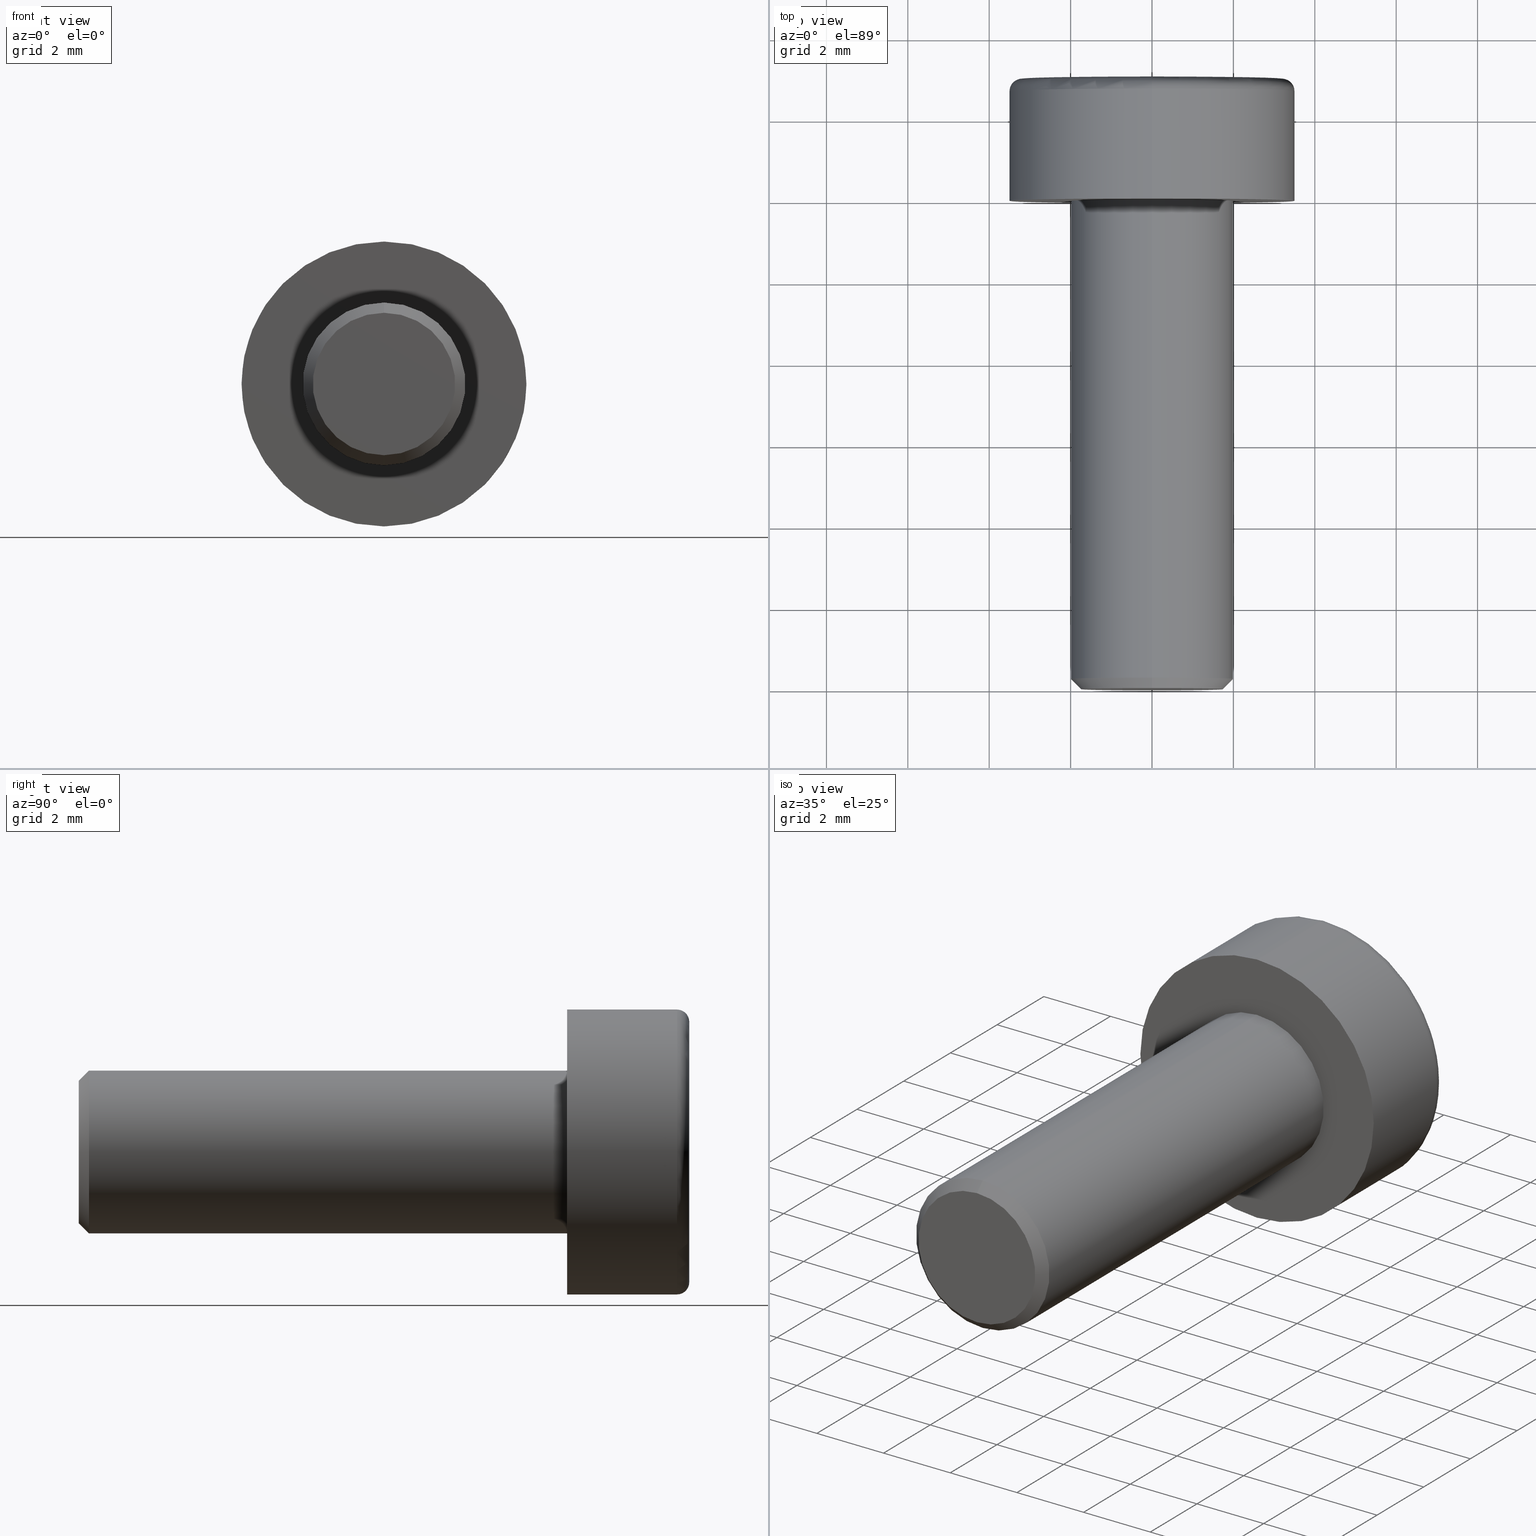
[diagram: canonical four-view strip — front | top / right | iso, engineering-drawing reading convention]
A machine part, canonical four-view strip (front | top / right | iso — engineering-drawing reading convention). The complete STEP part file that produces these views, byte-faithful:
ISO-10303-21;
HEADER;
FILE_DESCRIPTION (( 'STEP AP203' ),
    '1' );
FILE_NAME ('084.301.008.STEP',
    '2015-04-17T10:03:38',
    ( '' ),
    ( '' ),
    'SwSTEP 2.0',
    'SolidWorks 2012',
    '' );
FILE_SCHEMA (( 'CONFIG_CONTROL_DESIGN' ));
ENDSEC;

DATA;
#1 = CALENDAR_DATE ( 2015, 17, 4 ) ;
#2 = COORDINATED_UNIVERSAL_TIME_OFFSET ( 1, 0, .AHEAD. ) ;
#3 = APPROVAL_DATE_TIME ( #5, #497 ) ;
#4 = PERSON_AND_ORGANIZATION ( #311, #318 ) ;
#5 = DATE_AND_TIME ( #1, #7 ) ;
#6 = APPROVAL_PERSON_ORGANIZATION ( #4, #497, #269 ) ;
#7 = LOCAL_TIME ( 12, 3, 38.00000000000000000, #2 ) ;
#8 = ADVANCED_BREP_SHAPE_REPRESENTATION ( '084.301.008', ( #10, #482 ), #481 ) ;
#9 = UNCERTAINTY_MEASURE_WITH_UNIT (LENGTH_MEASURE( 1.000000000000000100E-005 ), #137, 'distance_accuracy_value', 'NONE');
#10 = MANIFOLD_SOLID_BREP ( 'Smusso1', #363 ) ;
#11 = DIRECTION ( 'NONE',  ( -0.0000000000000000000, -1.000000000000000000, -0.0000000000000000000 ) ) ;
#12 = CARTESIAN_POINT ( 'NONE',  ( 0.8660254037844383700, 1.000000000000000000, -1.499999999999999100 ) ) ;
#13 = DIRECTION ( 'NONE',  ( 0.0000000000000000000, 0.0000000000000000000, 1.000000000000000000 ) ) ;
#14 = APPROVAL_ROLE ( '' ) ;
#15 = APPROVAL_STATUS ( 'not_yet_approved' ) ;
#16 = CARTESIAN_POINT ( 'NONE',  ( -1.732050807568877900, 3.000000000000000000, -1.397130228418429200E-015 ) ) ;
#17 = CARTESIAN_POINT ( 'NONE',  ( 0.0000000000000000000, -12.00000000000000000, 0.0000000000000000000 ) ) ;
#18 = PLANE ( 'NONE',  #452 ) ;
#19 = DIRECTION ( 'NONE',  ( -0.5000000000000001100, 0.0000000000000000000, -0.8660254037844386000 ) ) ;
#20 = DATE_TIME_ROLE ( 'creation_date' ) ;
#21 = DIRECTION ( 'NONE',  ( 0.0000000000000000000, 0.0000000000000000000, 1.000000000000000000 ) ) ;
#22 = DIRECTION ( 'NONE',  ( 0.0000000000000000000, 0.0000000000000000000, -1.000000000000000000 ) ) ;
#23 = DIRECTION ( 'NONE',  ( -1.000000000000000000, 0.0000000000000000000, 2.503857664561930400E-016 ) ) ;
#24 = DIRECTION ( 'NONE',  ( 0.0000000000000000000, 1.000000000000000000, 0.0000000000000000000 ) ) ;
#25 = PERSON_AND_ORGANIZATION_ROLE ( 'creator' ) ;
#26 = CARTESIAN_POINT ( 'NONE',  ( 2.143131898507872000E-016, -12.00000000000000000, -1.750000000000003300 ) ) ;
#27 = APPROVAL_ROLE ( '' ) ;
#28 = CARTESIAN_POINT ( 'NONE',  ( 0.0000000000000000000, 3.000000000000000000, -3.500000000000000000 ) ) ;
#29 = APPROVAL_STATUS ( 'not_yet_approved' ) ;
#30 = APPLICATION_PROTOCOL_DEFINITION ( 'international standard', 'config_control_design', 1994, #34 ) ;
#31 = DIRECTION ( 'NONE',  ( 0.0000000000000000000, 0.0000000000000000000, -1.000000000000000000 ) ) ;
#32 = DIRECTION ( 'NONE',  ( 0.0000000000000000000, -1.000000000000000000, 0.0000000000000000000 ) ) ;
#33 = CARTESIAN_POINT ( 'NONE',  ( 0.8660254037844383700, 3.000000000000000000, -1.499999999999999100 ) ) ;
#34 = APPLICATION_CONTEXT ( 'configuration controlled 3d designs of mechanical parts and assemblies' ) ;
#35 = CARTESIAN_POINT ( 'NONE',  ( 0.0000000000000000000, 2.700000000000000200, 0.0000000000000000000 ) ) ;
#36 = PERSON_AND_ORGANIZATION_ROLE ( 'design_owner' ) ;
#37 = CARTESIAN_POINT ( 'NONE',  ( 0.8660254037844383700, 1.000000000000000000, -1.499999999999999100 ) ) ;
#38 = MECHANICAL_CONTEXT ( 'NONE', #46, 'mechanical' ) ;
#39 = DIRECTION ( 'NONE',  ( 0.0000000000000000000, 0.0000000000000000000, 1.000000000000000000 ) ) ;
#40 = CARTESIAN_POINT ( 'NONE',  ( 0.0000000000000000000, -11.75000000000000200, 2.000000000000000000 ) ) ;
#41 = CARTESIAN_POINT ( 'NONE',  ( 0.0000000000000000000, -12.00000000000000000, 0.0000000000000000000 ) ) ;
#42 = DIRECTION ( 'NONE',  ( 0.5000000000000001100, 0.0000000000000000000, -0.8660254037844386000 ) ) ;
#43 = DIRECTION ( 'NONE',  ( 1.000000000000000000, 0.0000000000000000000, 0.0000000000000000000 ) ) ;
#44 = DIRECTION ( 'NONE',  ( 0.0000000000000000000, 0.0000000000000000000, 1.000000000000000000 ) ) ;
#45 = CARTESIAN_POINT ( 'NONE',  ( 0.0000000000000000000, 0.0000000000000000000, 0.0000000000000000000 ) ) ;
#46 = APPLICATION_CONTEXT ( 'configuration controlled 3d designs of mechanical parts and assemblies' ) ;
#47 = CARTESIAN_POINT ( 'NONE',  ( 0.0000000000000000000, -12.00000000000000000, 0.0000000000000000000 ) ) ;
#48 = APPLICATION_PROTOCOL_DEFINITION ( 'international standard', 'config_control_design', 1994, #46 ) ;
#49 = DIRECTION ( 'NONE',  ( 0.0000000000000000000, 0.0000000000000000000, 1.000000000000000000 ) ) ;
#50 = DIRECTION ( 'NONE',  ( -0.0000000000000000000, -1.000000000000000000, -0.0000000000000000000 ) ) ;
#51 = CARTESIAN_POINT ( 'NONE',  ( 2.449293598294706400E-016, 0.0000000000000000000, -2.000000000000000000 ) ) ;
#52 = CARTESIAN_POINT ( 'NONE',  ( 4.102566777143633300E-016, 3.000000000000000000, -3.200000000000000200 ) ) ;
#53 =( NAMED_UNIT ( * ) SI_UNIT ( $, .STERADIAN. ) SOLID_ANGLE_UNIT ( ) );
#54 =( NAMED_UNIT ( * ) PLANE_ANGLE_UNIT ( ) SI_UNIT ( $, .RADIAN. ) );
#55 = DIRECTION ( 'NONE',  ( -0.5000000000000001100, 0.0000000000000000000, 0.8660254037844386000 ) ) ;
#56 = CARTESIAN_POINT ( 'NONE',  ( 0.8660254037844383700, 1.000000000000000000, -1.499999999999999100 ) ) ;
#57 = DIRECTION ( 'NONE',  ( 0.5000000000000002200, 0.0000000000000000000, 0.8660254037844386000 ) ) ;
#58 = CARTESIAN_POINT ( 'NONE',  ( -1.732050807568877900, 1.000000000000000000, -1.397130228418429200E-015 ) ) ;
#59 = PLANE ( 'NONE',  #467 ) ;
#60 = DIRECTION ( 'NONE',  ( -0.0000000000000000000, -1.000000000000000000, -0.0000000000000000000 ) ) ;
#61 = DIRECTION ( 'NONE',  ( 0.0000000000000000000, 0.0000000000000000000, -1.000000000000000000 ) ) ;
#62 = DIRECTION ( 'NONE',  ( 0.0000000000000000000, -1.000000000000000000, 0.0000000000000000000 ) ) ;
#63 = CARTESIAN_POINT ( 'NONE',  ( 0.0000000000000000000, 2.700000000000000200, 0.0000000000000000000 ) ) ;
#64 = CARTESIAN_POINT ( 'NONE',  ( 0.0000000000000000000, -12.00000000000000000, 0.0000000000000000000 ) ) ;
#65 = PLANE ( 'NONE',  #450 ) ;
#66 = DIRECTION ( 'NONE',  ( 0.0000000000000000000, -1.000000000000000000, 0.0000000000000000000 ) ) ;
#67 = DIRECTION ( 'NONE',  ( -0.0000000000000000000, 1.000000000000000000, -0.0000000000000000000 ) ) ;
#68 = CARTESIAN_POINT ( 'NONE',  ( 0.0000000000000000000, 3.000000000000000000, 3.200000000000000200 ) ) ;
#69 = CARTESIAN_POINT ( 'NONE',  ( 1.732050807568877200, 3.000000000000000000, 6.989779385099198900E-016 ) ) ;
#70 = CARTESIAN_POINT ( 'NONE',  ( 0.0000000000000000000, 0.0000000000000000000, -3.500000000000000000 ) ) ;
#71 = CARTESIAN_POINT ( 'NONE',  ( 0.0000000000000000000, -12.00000000000000000, 0.0000000000000000000 ) ) ;
#72 = CARTESIAN_POINT ( 'NONE',  ( 0.8660254037844382600, 1.000000000000000000, 1.500000000000000700 ) ) ;
#73 = DIRECTION ( 'NONE',  ( 0.8660254037844386000, 0.0000000000000000000, 0.5000000000000001100 ) ) ;
#74 = PERSON_AND_ORGANIZATION_ROLE ( 'creator' ) ;
#75 = CARTESIAN_POINT ( 'NONE',  ( -0.8660254037844404800, 3.000000000000000000, -1.499999999999998700 ) ) ;
#76 = DIRECTION ( 'NONE',  ( 0.0000000000000000000, 0.0000000000000000000, 1.000000000000000000 ) ) ;
#77 = DIRECTION ( 'NONE',  ( -0.8660254037844386000, 0.0000000000000000000, 0.5000000000000002200 ) ) ;
#78 = DIRECTION ( 'NONE',  ( 8.659560562354904500E-017, 0.7071067811865500200, -0.7071067811865451300 ) ) ;
#79 = DIRECTION ( 'NONE',  ( -0.0000000000000000000, 1.000000000000000000, -0.0000000000000000000 ) ) ;
#80 = DIRECTION ( 'NONE',  ( 0.0000000000000000000, 0.0000000000000000000, 1.000000000000000000 ) ) ;
#81 = DIRECTION ( 'NONE',  ( -0.0000000000000000000, 1.000000000000000000, -0.0000000000000000000 ) ) ;
#82 = PLANE ( 'NONE',  #462 ) ;
#83 = PLANE ( 'NONE',  #459 ) ;
#84 = DIRECTION ( 'NONE',  ( 0.0000000000000000000, 1.000000000000000000, 0.0000000000000000000 ) ) ;
#85 = CARTESIAN_POINT ( 'NONE',  ( -0.8660254037844404800, 1.000000000000000000, -1.499999999999998700 ) ) ;
#86 = DIRECTION ( 'NONE',  ( 0.0000000000000000000, 0.0000000000000000000, -1.000000000000000000 ) ) ;
#87 = DIRECTION ( 'NONE',  ( -0.0000000000000000000, 1.000000000000000000, -0.0000000000000000000 ) ) ;
#88 = CARTESIAN_POINT ( 'NONE',  ( 0.0000000000000000000, -12.00000000000000000, 0.0000000000000000000 ) ) ;
#89 = DIRECTION ( 'NONE',  ( 0.0000000000000000000, 0.0000000000000000000, 1.000000000000000000 ) ) ;
#90 = DIRECTION ( 'NONE',  ( 0.0000000000000000000, 1.000000000000000000, 0.0000000000000000000 ) ) ;
#91 = CARTESIAN_POINT ( 'NONE',  ( 0.0000000000000000000, -11.75000000000000200, 0.0000000000000000000 ) ) ;
#92 = DIRECTION ( 'NONE',  ( -0.0000000000000000000, -1.000000000000000000, -0.0000000000000000000 ) ) ;
#93 = CARTESIAN_POINT ( 'NONE',  ( -1.732050807568877900, 1.000000000000000000, -1.397130228418429200E-015 ) ) ;
#94 = CARTESIAN_POINT ( 'NONE',  ( 1.732050807568877200, 1.000000000000000000, 6.989779385099198900E-016 ) ) ;
#95 = CARTESIAN_POINT ( 'NONE',  ( 0.0000000000000000000, 0.0000000000000000000, 0.0000000000000000000 ) ) ;
#96 = CARTESIAN_POINT ( 'NONE',  ( 0.8660254037844382600, 1.000000000000000000, 1.500000000000000700 ) ) ;
#97 = CARTESIAN_POINT ( 'NONE',  ( 2.449293598294706400E-016, -11.75000000000000200, -2.000000000000000000 ) ) ;
#98 = DIRECTION ( 'NONE',  ( 0.0000000000000000000, 1.000000000000000000, -0.0000000000000000000 ) ) ;
#99 = CARTESIAN_POINT ( 'NONE',  ( 0.0000000000000000000, 2.700000000000000200, -3.500000000000000000 ) ) ;
#100 = PLANE ( 'NONE',  #458 ) ;
#101 = DIRECTION ( 'NONE',  ( 1.000000000000000000, 0.0000000000000000000, 0.0000000000000000000 ) ) ;
#102 = CARTESIAN_POINT ( 'NONE',  ( -0.8660254037844404800, 1.000000000000000000, -1.499999999999998700 ) ) ;
#103 = CARTESIAN_POINT ( 'NONE',  ( 1.732050807568877200, 1.000000000000000000, 6.989779385099198900E-016 ) ) ;
#104 = CARTESIAN_POINT ( 'NONE',  ( -1.732050807568877900, 1.000000000000000000, -1.397130228418429200E-015 ) ) ;
#105 = DIRECTION ( 'NONE',  ( 0.0000000000000000000, 1.000000000000000000, 0.0000000000000000000 ) ) ;
#106 = CARTESIAN_POINT ( 'NONE',  ( 2.296212748401289000E-016, -12.00000000000000000, -1.750000000000003300 ) ) ;
#107 = DIRECTION ( 'NONE',  ( 0.5000000000000001100, 0.0000000000000000000, 0.8660254037844384900 ) ) ;
#108 = CARTESIAN_POINT ( 'NONE',  ( 0.0000000000000000000, -12.00000000000000000, 1.750000000000003300 ) ) ;
#109 = PLANE ( 'NONE',  #455 ) ;
#110 = CARTESIAN_POINT ( 'NONE',  ( -1.732050807568877900, 1.000000000000000000, -1.397130228418429200E-015 ) ) ;
#111 = DIRECTION ( 'NONE',  ( -0.0000000000000000000, 1.000000000000000000, -0.0000000000000000000 ) ) ;
#112 = CARTESIAN_POINT ( 'NONE',  ( 0.0000000000000000000, 0.0000000000000000000, 0.0000000000000000000 ) ) ;
#113 = CARTESIAN_POINT ( 'NONE',  ( 0.0000000000000000000, 3.000000000000000000, 0.0000000000000000000 ) ) ;
#114 = CARTESIAN_POINT ( 'NONE',  ( -0.8660254037844377100, 1.000000000000000000, 1.500000000000000700 ) ) ;
#115 = DIRECTION ( 'NONE',  ( 0.0000000000000000000, 0.0000000000000000000, 1.000000000000000000 ) ) ;
#116 = DIRECTION ( 'NONE',  ( 1.000000000000000000, 0.0000000000000000000, 0.0000000000000000000 ) ) ;
#117 = PLANE ( 'NONE',  #456 ) ;
#118 = DIRECTION ( 'NONE',  ( 1.000000000000000000, 0.0000000000000000000, 0.0000000000000000000 ) ) ;
#119 = CARTESIAN_POINT ( 'NONE',  ( -0.8660254037844377100, 1.000000000000000000, 1.500000000000000700 ) ) ;
#120 = DIRECTION ( 'NONE',  ( -0.0000000000000000000, 1.000000000000000000, -0.0000000000000000000 ) ) ;
#121 = CARTESIAN_POINT ( 'NONE',  ( 0.8660254037844382600, 1.000000000000000000, 1.500000000000000700 ) ) ;
#122 = DIRECTION ( 'NONE',  ( 0.5000000000000001100, 0.0000000000000000000, -0.8660254037844386000 ) ) ;
#123 = CARTESIAN_POINT ( 'NONE',  ( 0.8660254037844382600, 1.000000000000000000, 1.500000000000000700 ) ) ;
#124 = DIRECTION ( 'NONE',  ( 0.0000000000000000000, 0.7071067811865500200, 0.7071067811865451300 ) ) ;
#125 = DIRECTION ( 'NONE',  ( -2.503857664561930400E-016, 0.0000000000000000000, -1.000000000000000000 ) ) ;
#126 = DIRECTION ( 'NONE',  ( -0.5000000000000001100, 0.0000000000000000000, -0.8660254037844386000 ) ) ;
#127 = CARTESIAN_POINT ( 'NONE',  ( 1.732050807568877200, 1.000000000000000000, 6.989779385099198900E-016 ) ) ;
#128 = DIRECTION ( 'NONE',  ( -0.0000000000000000000, 1.000000000000000000, -0.0000000000000000000 ) ) ;
#129 = DIRECTION ( 'NONE',  ( 0.5000000000000001100, 0.0000000000000000000, -0.8660254037844386000 ) ) ;
#130 = CARTESIAN_POINT ( 'NONE',  ( 0.8660254037844382600, 3.000000000000000000, 1.500000000000000700 ) ) ;
#131 = DIRECTION ( 'NONE',  ( 0.0000000000000000000, 0.0000000000000000000, 1.000000000000000000 ) ) ;
#132 = CARTESIAN_POINT ( 'NONE',  ( -1.732050807568877900, 1.000000000000000000, -1.325064512341561300E-015 ) ) ;
#133 = DIRECTION ( 'NONE',  ( 0.0000000000000000000, 1.000000000000000000, 0.0000000000000000000 ) ) ;
#134 = CARTESIAN_POINT ( 'NONE',  ( 0.0000000000000000000, 0.0000000000000000000, 0.0000000000000000000 ) ) ;
#135 = CARTESIAN_POINT ( 'NONE',  ( 2.449293598294706400E-016, -12.00000000000000000, -2.000000000000000000 ) ) ;
#136 = DIRECTION ( 'NONE',  ( 0.0000000000000000000, -0.0000000000000000000, 1.000000000000000000 ) ) ;
#137 =( LENGTH_UNIT ( ) NAMED_UNIT ( * ) SI_UNIT ( .MILLI., .METRE. ) );
#138 = DIRECTION ( 'NONE',  ( -1.000000000000000000, 0.0000000000000000000, 2.503857664561930400E-016 ) ) ;
#139 = DIRECTION ( 'NONE',  ( 1.224646799147353200E-016, 0.0000000000000000000, -1.000000000000000000 ) ) ;
#140 = DIRECTION ( 'NONE',  ( 0.0000000000000000000, 0.0000000000000000000, 1.000000000000000000 ) ) ;
#141 = DIRECTION ( 'NONE',  ( -1.000000000000000000, 0.0000000000000000000, 0.0000000000000000000 ) ) ;
#142 = CARTESIAN_POINT ( 'NONE',  ( 4.286263797015736600E-016, 0.0000000000000000000, 3.500000000000000000 ) ) ;
#143 = CARTESIAN_POINT ( 'NONE',  ( 0.0000000000000000000, 2.700000000000000200, 3.200000000000000200 ) ) ;
#144 = CARTESIAN_POINT ( 'NONE',  ( 0.8660254037844382600, 3.000000000000000000, 1.500000000000000700 ) ) ;
#145 = DIRECTION ( 'NONE',  ( 1.000000000000000000, -0.0000000000000000000, 1.224646799147353200E-016 ) ) ;
#146 = CARTESIAN_POINT ( 'NONE',  ( -0.8660254037844377100, 3.000000000000000000, 1.500000000000000700 ) ) ;
#147 = DIRECTION ( 'NONE',  ( 0.8660254037844386000, 0.0000000000000000000, -0.5000000000000001100 ) ) ;
#148 = DIRECTION ( 'NONE',  ( -0.5000000000000001100, 0.0000000000000000000, -0.8660254037844386000 ) ) ;
#149 = CARTESIAN_POINT ( 'NONE',  ( 0.8660254037844383700, 3.000000000000000000, -1.499999999999999100 ) ) ;
#150 = DIRECTION ( 'NONE',  ( 0.0000000000000000000, -0.0000000000000000000, 1.000000000000000000 ) ) ;
#151 = DIRECTION ( 'NONE',  ( 0.0000000000000000000, 1.000000000000000000, 0.0000000000000000000 ) ) ;
#152 = CARTESIAN_POINT ( 'NONE',  ( 0.8660254037844383700, 1.000000000000000000, -1.499999999999999100 ) ) ;
#153 = CARTESIAN_POINT ( 'NONE',  ( -0.8660254037844377100, 1.000000000000000000, 1.500000000000000700 ) ) ;
#154 = DIRECTION ( 'NONE',  ( -0.5000000000000001100, 0.0000000000000000000, 0.8660254037844386000 ) ) ;
#155 = DIRECTION ( 'NONE',  ( 0.0000000000000000000, 0.0000000000000000000, 1.000000000000000000 ) ) ;
#156 = DIRECTION ( 'NONE',  ( -0.0000000000000000000, -1.000000000000000000, -0.0000000000000000000 ) ) ;
#157 = CARTESIAN_POINT ( 'NONE',  ( 0.0000000000000000000, 2.700000000000000200, 0.0000000000000000000 ) ) ;
#158 = DIRECTION ( 'NONE',  ( 0.0000000000000000000, 1.000000000000000000, 0.0000000000000000000 ) ) ;
#159 = CARTESIAN_POINT ( 'NONE',  ( 0.0000000000000000000, 0.0000000000000000000, 2.000000000000000000 ) ) ;
#160 = DIRECTION ( 'NONE',  ( -1.000000000000000000, 0.0000000000000000000, 2.503857664561930400E-016 ) ) ;
#161 = DIRECTION ( 'NONE',  ( -0.0000000000000000000, -1.000000000000000000, -0.0000000000000000000 ) ) ;
#162 = DIRECTION ( 'NONE',  ( 0.5000000000000001100, 0.0000000000000000000, 0.8660254037844384900 ) ) ;
#163 = CARTESIAN_POINT ( 'NONE',  ( -1.732050807568877900, 3.000000000000000000, -1.517883041479706200E-015 ) ) ;
#164 = DIRECTION ( 'NONE',  ( 0.0000000000000000000, 0.0000000000000000000, 1.000000000000000000 ) ) ;
#165 = DIRECTION ( 'NONE',  ( -0.0000000000000000000, -1.000000000000000000, -0.0000000000000000000 ) ) ;
#166 = CARTESIAN_POINT ( 'NONE',  ( 0.0000000000000000000, 0.0000000000000000000, 0.0000000000000000000 ) ) ;
#167 = CARTESIAN_POINT ( 'NONE',  ( -0.8660254037844404800, 3.000000000000000000, -1.499999999999998700 ) ) ;
#168 = CARTESIAN_POINT ( 'NONE',  ( 3.918869757271530500E-016, 2.700000000000000200, -3.200000000000000200 ) ) ;
#169 = CARTESIAN_POINT ( 'NONE',  ( 0.0000000000000000000, -12.00000000000000000, 2.000000000000000000 ) ) ;
#170 = CARTESIAN_POINT ( 'NONE',  ( 4.286263797015736600E-016, 2.700000000000000200, 3.500000000000000000 ) ) ;
#171 = DIRECTION ( 'NONE',  ( 0.0000000000000000000, 0.0000000000000000000, -1.000000000000000000 ) ) ;
#172 = DIRECTION ( 'NONE',  ( -0.0000000000000000000, 1.000000000000000000, -0.0000000000000000000 ) ) ;
#173 = DIRECTION ( 'NONE',  ( -0.0000000000000000000, 1.000000000000000000, -0.0000000000000000000 ) ) ;
#174 = CARTESIAN_POINT ( 'NONE',  ( -0.8660254037844377100, 3.000000000000000000, 1.500000000000000700 ) ) ;
#175 = CARTESIAN_POINT ( 'NONE',  ( 0.0000000000000000000, 3.000000000000000000, 0.0000000000000000000 ) ) ;
#176 = DIRECTION ( 'NONE',  ( 0.0000000000000000000, -0.0000000000000000000, -1.000000000000000000 ) ) ;
#177 = PLANE ( 'NONE',  #461 ) ;
#178 = DIRECTION ( 'NONE',  ( 0.0000000000000000000, 0.0000000000000000000, 1.000000000000000000 ) ) ;
#179 = CARTESIAN_POINT ( 'NONE',  ( 0.0000000000000000000, -12.00000000000000000, 1.750000000000003300 ) ) ;
#180 = DIRECTION ( 'NONE',  ( -0.5000000000000001100, 0.0000000000000000000, 0.8660254037844386000 ) ) ;
#181 = DIRECTION ( 'NONE',  ( -0.0000000000000000000, 0.0000000000000000000, 1.000000000000000000 ) ) ;
#182 = DIRECTION ( 'NONE',  ( 0.0000000000000000000, 1.000000000000000000, 0.0000000000000000000 ) ) ;
#183 = DIRECTION ( 'NONE',  ( 0.0000000000000000000, 0.0000000000000000000, -1.000000000000000000 ) ) ;
#184 = DIRECTION ( 'NONE',  ( 0.0000000000000000000, 1.000000000000000000, 0.0000000000000000000 ) ) ;
#185 = PLANE ( 'NONE',  #460 ) ;
#186 = CARTESIAN_POINT ( 'NONE',  ( 0.0000000000000000000, 3.000000000000000000, 0.0000000000000000000 ) ) ;
#187 = CARTESIAN_POINT ( 'NONE',  ( 0.0000000000000000000, -11.75000000000000200, 0.0000000000000000000 ) ) ;
#188 = CARTESIAN_POINT ( 'NONE',  ( -0.8660254037844377100, 1.000000000000000000, 1.500000000000000700 ) ) ;
#189 = CARTESIAN_POINT ( 'NONE',  ( 0.0000000000000000000, 3.000000000000000000, 0.0000000000000000000 ) ) ;
#190 = CARTESIAN_POINT ( 'NONE',  ( 0.0000000000000000000, 3.000000000000000000, 0.0000000000000000000 ) ) ;
#191 = CARTESIAN_POINT ( 'NONE',  ( -0.8660254037844404800, 1.000000000000000000, -1.499999999999998700 ) ) ;
#192 = DIRECTION ( 'NONE',  ( 0.0000000000000000000, 0.0000000000000000000, 1.000000000000000000 ) ) ;
#193 = DIRECTION ( 'NONE',  ( 0.0000000000000000000, 0.0000000000000000000, 1.000000000000000000 ) ) ;
#194 = DIRECTION ( 'NONE',  ( 0.0000000000000000000, 0.0000000000000000000, 1.000000000000000000 ) ) ;
#195 = CARTESIAN_POINT ( 'NONE',  ( -0.8660254037844404800, 1.000000000000000000, -1.499999999999998700 ) ) ;
#196 = DIRECTION ( 'NONE',  ( -0.8660254037844386000, 0.0000000000000000000, -0.5000000000000001100 ) ) ;
#197 = DIRECTION ( 'NONE',  ( 0.0000000000000000000, 1.000000000000000000, 0.0000000000000000000 ) ) ;
#198 = CARTESIAN_POINT ( 'NONE',  ( 0.0000000000000000000, 0.0000000000000000000, 0.0000000000000000000 ) ) ;
#199 = DIRECTION ( 'NONE',  ( -0.0000000000000000000, 1.000000000000000000, -0.0000000000000000000 ) ) ;
#200 = CARTESIAN_POINT ( 'NONE',  ( 1.732050807568877200, 3.000000000000000000, 6.989779385099198900E-016 ) ) ;
#201 = DIRECTION ( 'NONE',  ( 0.0000000000000000000, 1.000000000000000000, 0.0000000000000000000 ) ) ;
#202 = CARTESIAN_POINT ( 'NONE',  ( 1.732050807568877200, 1.000000000000000000, 6.989779385099198900E-016 ) ) ;
#203 = CARTESIAN_POINT ( 'NONE',  ( 0.0000000000000000000, -12.00000000000000000, 0.0000000000000000000 ) ) ;
#204 = CARTESIAN_POINT ( 'NONE',  ( 4.286263797015736600E-016, 3.000000000000000000, 3.500000000000000000 ) ) ;
#205 = DIRECTION ( 'NONE',  ( -0.0000000000000000000, -1.000000000000000000, -0.0000000000000000000 ) ) ;
#206 = DIRECTION ( 'NONE',  ( 0.0000000000000000000, 1.000000000000000000, 0.0000000000000000000 ) ) ;
#207 = CARTESIAN_POINT ( 'NONE',  ( 0.0000000000000000000, 2.700000000000000200, 0.0000000000000000000 ) ) ;
#208 = FACE_BOUND ( 'NONE', #529, .T. ) ;
#209 = FACE_OUTER_BOUND ( 'NONE', #538, .T. ) ;
#210 = FACE_OUTER_BOUND ( 'NONE', #536, .T. ) ;
#211 = FACE_OUTER_BOUND ( 'NONE', #528, .T. ) ;
#212 = FACE_OUTER_BOUND ( 'NONE', #523, .T. ) ;
#213 = TOROIDAL_SURFACE ( 'NONE', #453, 3.200000000000000200, 0.2999999999999999900 ) ;
#214 = FACE_OUTER_BOUND ( 'NONE', #537, .T. ) ;
#215 = FACE_OUTER_BOUND ( 'NONE', #532, .T. ) ;
#216 = CONICAL_SURFACE ( 'NONE', #449, 1.750000000000003300, 0.7853981633974447300 ) ;
#217 = VERTEX_POINT ( 'NONE', #33 ) ;
#218 = VERTEX_POINT ( 'NONE', #195 ) ;
#219 = VERTEX_POINT ( 'NONE', #96 ) ;
#220 = VERTEX_POINT ( 'NONE', #56 ) ;
#221 = VERTEX_POINT ( 'NONE', #51 ) ;
#222 = LINE ( 'NONE', #37, #244 ) ;
#223 = CYLINDRICAL_SURFACE ( 'NONE', #465, 2.000000000000000000 ) ;
#224 = FACE_OUTER_BOUND ( 'NONE', #541, .T. ) ;
#225 = VECTOR ( 'NONE', #180, 1000.000000000000000 ) ;
#226 = CYLINDRICAL_SURFACE ( 'NONE', #457, 3.500000000000000000 ) ;
#227 = TOROIDAL_SURFACE ( 'NONE', #463, 3.200000000000000200, 0.2999999999999999900 ) ;
#228 = FACE_OUTER_BOUND ( 'NONE', #534, .T. ) ;
#229 = CONICAL_SURFACE ( 'NONE', #451, 1.750000000000003300, 0.7853981633974447300 ) ;
#230 = FACE_OUTER_BOUND ( 'NONE', #533, .T. ) ;
#231 = FACE_OUTER_BOUND ( 'NONE', #540, .T. ) ;
#232 = FACE_OUTER_BOUND ( 'NONE', #535, .T. ) ;
#233 = FACE_OUTER_BOUND ( 'NONE', #544, .T. ) ;
#234 = FACE_OUTER_BOUND ( 'NONE', #527, .T. ) ;
#235 = CYLINDRICAL_SURFACE ( 'NONE', #454, 2.000000000000000000 ) ;
#236 = VERTEX_POINT ( 'NONE', #70 ) ;
#237 = VERTEX_POINT ( 'NONE', #69 ) ;
#238 = VERTEX_POINT ( 'NONE', #153 ) ;
#239 = VERTEX_POINT ( 'NONE', #103 ) ;
#240 = VECTOR ( 'NONE', #79, 1000.000000000000000 ) ;
#241 = VERTEX_POINT ( 'NONE', #99 ) ;
#242 = LINE ( 'NONE', #191, #225 ) ;
#243 = CYLINDRICAL_SURFACE ( 'NONE', #466, 3.500000000000000000 ) ;
#244 = VECTOR ( 'NONE', #67, 1000.000000000000000 ) ;
#245 = LINE ( 'NONE', #104, #247 ) ;
#246 = FACE_OUTER_BOUND ( 'NONE', #531, .T. ) ;
#247 = VECTOR ( 'NONE', #172, 1000.000000000000000 ) ;
#248 = FACE_OUTER_BOUND ( 'NONE', #530, .T. ) ;
#249 = FACE_OUTER_BOUND ( 'NONE', #524, .T. ) ;
#250 = LINE ( 'NONE', #85, #240 ) ;
#251 = FACE_BOUND ( 'NONE', #539, .T. ) ;
#252 = FACE_OUTER_BOUND ( 'NONE', #521, .T. ) ;
#253 = FACE_OUTER_BOUND ( 'NONE', #525, .T. ) ;
#254 = CALENDAR_DATE ( 2015, 17, 4 ) ;
#255 = APPROVAL_PERSON_ORGANIZATION ( #263, #490, #14 ) ;
#256 = DATE_AND_TIME ( #254, #265 ) ;
#257 = COORDINATED_UNIVERSAL_TIME_OFFSET ( 1, 0, .AHEAD. ) ;
#258 = PERSON_AND_ORGANIZATION ( #311, #318 ) ;
#259 = APPROVAL_DATE_TIME ( #267, #490 ) ;
#260 = LOCAL_TIME ( 12, 3, 38.00000000000000000, #257 ) ;
#261 = CALENDAR_DATE ( 2015, 17, 4 ) ;
#262 = COORDINATED_UNIVERSAL_TIME_OFFSET ( 1, 0, .AHEAD. ) ;
#263 = PERSON_AND_ORGANIZATION ( #311, #318 ) ;
#264 = PERSON_AND_ORGANIZATION ( #311, #318 ) ;
#265 = LOCAL_TIME ( 12, 3, 38.00000000000000000, #262 ) ;
#266 = PERSON_AND_ORGANIZATION ( #311, #318 ) ;
#267 = DATE_AND_TIME ( #261, #260 ) ;
#268 = PERSON_AND_ORGANIZATION_ROLE ( 'classification_officer' ) ;
#269 = APPROVAL_ROLE ( '' ) ;
#270 = APPROVAL_STATUS ( 'not_yet_approved' ) ;
#271 = DATE_TIME_ROLE ( 'classification_date' ) ;
#272 = PERSON_AND_ORGANIZATION_ROLE ( 'design_supplier' ) ;
#273 = SECURITY_CLASSIFICATION_LEVEL ( 'unclassified' ) ;
#274 = LINE ( 'NONE', #169, #279 ) ;
#275 = LINE ( 'NONE', #152, #285 ) ;
#276 = LINE ( 'NONE', #16, #277 ) ;
#277 = VECTOR ( 'NONE', #162, 1000.000000000000200 ) ;
#278 = LINE ( 'NONE', #174, #280 ) ;
#279 = VECTOR ( 'NONE', #199, 1000.000000000000000 ) ;
#280 = VECTOR ( 'NONE', #118, 1000.000000000000000 ) ;
#281 = VECTOR ( 'NONE', #173, 1000.000000000000000 ) ;
#282 = CIRCLE ( 'NONE', #477, 0.2999999999999999300 ) ;
#283 = CIRCLE ( 'NONE', #472, 3.200000000000000200 ) ;
#284 = LINE ( 'NONE', #200, #299 ) ;
#285 = VECTOR ( 'NONE', #23, 1000.000000000000000 ) ;
#286 = CIRCLE ( 'NONE', #470, 3.500000000000000000 ) ;
#287 = LINE ( 'NONE', #202, #281 ) ;
#288 = CIRCLE ( 'NONE', #473, 3.500000000000000000 ) ;
#289 = VECTOR ( 'NONE', #124, 1000.000000000000100 ) ;
#290 = LINE ( 'NONE', #204, #295 ) ;
#291 = LINE ( 'NONE', #108, #289 ) ;
#292 = VECTOR ( 'NONE', #160, 1000.000000000000000 ) ;
#293 = CIRCLE ( 'NONE', #476, 3.500000000000000000 ) ;
#294 = CIRCLE ( 'NONE', #468, 0.2999999999999999300 ) ;
#295 = VECTOR ( 'NONE', #205, 1000.000000000000000 ) ;
#296 = CIRCLE ( 'NONE', #469, 2.000000000000000000 ) ;
#297 = VECTOR ( 'NONE', #78, 1000.000000000000100 ) ;
#298 = CIRCLE ( 'NONE', #475, 2.000000000000000000 ) ;
#299 = VECTOR ( 'NONE', #19, 1000.000000000000100 ) ;
#300 = LINE ( 'NONE', #149, #292 ) ;
#301 = LINE ( 'NONE', #28, #303 ) ;
#302 = CIRCLE ( 'NONE', #471, 1.750000000000003300 ) ;
#303 = VECTOR ( 'NONE', #11, 1000.000000000000000 ) ;
#304 = LINE ( 'NONE', #26, #297 ) ;
#305 = CIRCLE ( 'NONE', #464, 2.000000000000000000 ) ;
#306 = CIRCLE ( 'NONE', #474, 3.200000000000000200 ) ;
#307 = CIRCLE ( 'NONE', #478, 3.500000000000000000 ) ;
#308 = DESIGN_CONTEXT ( 'detailed design', #34, 'design' ) ;
#309 = PRODUCT_DEFINITION_SHAPE ( 'NONE', 'NONE',  #484 ) ;
#310 = PRODUCT ( '084.301.008', '084.301.008', '', ( #38 ) ) ;
#311 = PERSON ( 'NON SPECIFICATO', 'NON SPECIFICATO', 'NON SPECIFICATO', ('NON SPECIFICATO'), ('NON SPECIFICATO'), ('NON SPECIFICATO') ) ;
#312 = LOCAL_TIME ( 12, 3, 38.00000000000000000, #321 ) ;
#313 = CALENDAR_DATE ( 2015, 17, 4 ) ;
#314 = PERSON_AND_ORGANIZATION ( #311, #318 ) ;
#315 = COORDINATED_UNIVERSAL_TIME_OFFSET ( 1, 0, .AHEAD. ) ;
#316 = LOCAL_TIME ( 12, 3, 38.00000000000000000, #315 ) ;
#317 = APPROVAL_DATE_TIME ( #322, #485 ) ;
#318 = ORGANIZATION ( 'NON SPECIFICATO', 'NON SPECIFICATO', '' ) ;
#319 = APPROVAL_PERSON_ORGANIZATION ( #324, #485, #27 ) ;
#320 = DATE_AND_TIME ( #313, #312 ) ;
#321 = COORDINATED_UNIVERSAL_TIME_OFFSET ( 1, 0, .AHEAD. ) ;
#322 = DATE_AND_TIME ( #326, #316 ) ;
#323 = PERSON_AND_ORGANIZATION ( #311, #318 ) ;
#324 = PERSON_AND_ORGANIZATION ( #311, #318 ) ;
#325 = SHAPE_DEFINITION_REPRESENTATION ( #309, #8 ) ;
#326 = CALENDAR_DATE ( 2015, 17, 4 ) ;
#327 = ORIENTED_EDGE ( 'NONE', *, *, #439, .F. ) ;
#328 = ORIENTED_EDGE ( 'NONE', *, *, #431, .T. ) ;
#329 = ORIENTED_EDGE ( 'NONE', *, *, #431, .F. ) ;
#330 = ORIENTED_EDGE ( 'NONE', *, *, #420, .T. ) ;
#331 = ORIENTED_EDGE ( 'NONE', *, *, #415, .T. ) ;
#332 = ORIENTED_EDGE ( 'NONE', *, *, #412, .F. ) ;
#333 = ORIENTED_EDGE ( 'NONE', *, *, #411, .F. ) ;
#334 = VERTEX_POINT ( 'NONE', #97 ) ;
#335 = VERTEX_POINT ( 'NONE', #40 ) ;
#336 = VERTEX_POINT ( 'NONE', #146 ) ;
#337 = VERTEX_POINT ( 'NONE', #170 ) ;
#338 = ORIENTED_EDGE ( 'NONE', *, *, #447, .F. ) ;
#339 = ORIENTED_EDGE ( 'NONE', *, *, #448, .T. ) ;
#340 = ORIENTED_EDGE ( 'NONE', *, *, #412, .T. ) ;
#341 = ORIENTED_EDGE ( 'NONE', *, *, #446, .F. ) ;
#342 = ORIENTED_EDGE ( 'NONE', *, *, #443, .F. ) ;
#343 = ORIENTED_EDGE ( 'NONE', *, *, #421, .T. ) ;
#344 = ORIENTED_EDGE ( 'NONE', *, *, #427, .F. ) ;
#345 = ORIENTED_EDGE ( 'NONE', *, *, #441, .F. ) ;
#346 = ORIENTED_EDGE ( 'NONE', *, *, #425, .T. ) ;
#347 = ORIENTED_EDGE ( 'NONE', *, *, #417, .F. ) ;
#348 = ORIENTED_EDGE ( 'NONE', *, *, #424, .F. ) ;
#349 = ORIENTED_EDGE ( 'NONE', *, *, #430, .F. ) ;
#350 = ORIENTED_EDGE ( 'NONE', *, *, #447, .T. ) ;
#351 = ORIENTED_EDGE ( 'NONE', *, *, #422, .T. ) ;
#352 = ORIENTED_EDGE ( 'NONE', *, *, #442, .T. ) ;
#353 = ORIENTED_EDGE ( 'NONE', *, *, #413, .T. ) ;
#354 = VERTEX_POINT ( 'NONE', #106 ) ;
#355 = VERTEX_POINT ( 'NONE', #179 ) ;
#356 = VERTEX_POINT ( 'NONE', #163 ) ;
#357 = VERTEX_POINT ( 'NONE', #142 ) ;
#358 = ORIENTED_EDGE ( 'NONE', *, *, #423, .T. ) ;
#359 = ORIENTED_EDGE ( 'NONE', *, *, #446, .T. ) ;
#360 = ORIENTED_EDGE ( 'NONE', *, *, #411, .T. ) ;
#361 = ORIENTED_EDGE ( 'NONE', *, *, #445, .T. ) ;
#362 = ORIENTED_EDGE ( 'NONE', *, *, #444, .F. ) ;
#363 = CLOSED_SHELL ( 'NONE', ( #397, #398, #396, #401, #399, #409, #406, #407, #410, #405, #400, #402, #404, #393, #403, #408, #395, #394 ) ) ;
#364 = ORIENTED_EDGE ( 'NONE', *, *, #439, .T. ) ;
#365 = ORIENTED_EDGE ( 'NONE', *, *, #436, .F. ) ;
#366 = ORIENTED_EDGE ( 'NONE', *, *, #413, .F. ) ;
#367 = ORIENTED_EDGE ( 'NONE', *, *, #426, .T. ) ;
#368 = ORIENTED_EDGE ( 'NONE', *, *, #435, .T. ) ;
#369 = ORIENTED_EDGE ( 'NONE', *, *, #428, .T. ) ;
#370 = ORIENTED_EDGE ( 'NONE', *, *, #440, .F. ) ;
#371 = ORIENTED_EDGE ( 'NONE', *, *, #416, .T. ) ;
#372 = ORIENTED_EDGE ( 'NONE', *, *, #441, .T. ) ;
#373 = ORIENTED_EDGE ( 'NONE', *, *, #436, .T. ) ;
#374 = VERTEX_POINT ( 'NONE', #52 ) ;
#375 = VERTEX_POINT ( 'NONE', #144 ) ;
#376 = VERTEX_POINT ( 'NONE', #68 ) ;
#377 = VERTEX_POINT ( 'NONE', #159 ) ;
#378 = VERTEX_POINT ( 'NONE', #75 ) ;
#379 = ORIENTED_EDGE ( 'NONE', *, *, #448, .F. ) ;
#380 = ORIENTED_EDGE ( 'NONE', *, *, #444, .T. ) ;
#381 = ORIENTED_EDGE ( 'NONE', *, *, #445, .F. ) ;
#382 = ORIENTED_EDGE ( 'NONE', *, *, #417, .T. ) ;
#383 = ORIENTED_EDGE ( 'NONE', *, *, #443, .T. ) ;
#384 = ORIENTED_EDGE ( 'NONE', *, *, #438, .F. ) ;
#385 = ORIENTED_EDGE ( 'NONE', *, *, #414, .F. ) ;
#386 = ORIENTED_EDGE ( 'NONE', *, *, #430, .T. ) ;
#387 = ORIENTED_EDGE ( 'NONE', *, *, #421, .F. ) ;
#388 = ORIENTED_EDGE ( 'NONE', *, *, #419, .F. ) ;
#389 = ORIENTED_EDGE ( 'NONE', *, *, #438, .T. ) ;
#390 = ORIENTED_EDGE ( 'NONE', *, *, #416, .F. ) ;
#391 = ORIENTED_EDGE ( 'NONE', *, *, #414, .T. ) ;
#392 = ORIENTED_EDGE ( 'NONE', *, *, #442, .F. ) ;
#393 = ADVANCED_FACE ( 'NONE', ( #214 ), #65, .F. ) ;
#394 = ADVANCED_FACE ( 'NONE', ( #233 ), #216, .T. ) ;
#395 = ADVANCED_FACE ( 'NONE', ( #212 ), #18, .T. ) ;
#396 = ADVANCED_FACE ( 'NONE', ( #215 ), #213, .T. ) ;
#397 = ADVANCED_FACE ( 'NONE', ( #231 ), #229, .T. ) ;
#398 = ADVANCED_FACE ( 'NONE', ( #232 ), #235, .T. ) ;
#399 = ADVANCED_FACE ( 'NONE', ( #234, #208 ), #109, .F. ) ;
#400 = ADVANCED_FACE ( 'NONE', ( #230 ), #117, .F. ) ;
#401 = ADVANCED_FACE ( 'NONE', ( #211 ), #226, .T. ) ;
#402 = ADVANCED_FACE ( 'NONE', ( #209 ), #100, .F. ) ;
#403 = ADVANCED_FACE ( 'NONE', ( #210 ), #83, .T. ) ;
#404 = ADVANCED_FACE ( 'NONE', ( #228 ), #185, .F. ) ;
#405 = ADVANCED_FACE ( 'NONE', ( #252 ), #177, .F. ) ;
#406 = ADVANCED_FACE ( 'NONE', ( #251, #248 ), #82, .T. ) ;
#407 = ADVANCED_FACE ( 'NONE', ( #249 ), #227, .T. ) ;
#408 = ADVANCED_FACE ( 'NONE', ( #246 ), #223, .T. ) ;
#409 = ADVANCED_FACE ( 'NONE', ( #253 ), #243, .T. ) ;
#410 = ADVANCED_FACE ( 'NONE', ( #224 ), #59, .F. ) ;
#411 = EDGE_CURVE ( 'NONE', #218, #563, #242, .T. ) ;
#412 = EDGE_CURVE ( 'NONE', #563, #356, #245, .T. ) ;
#413 = EDGE_CURVE ( 'NONE', #218, #378, #250, .T. ) ;
#414 = EDGE_CURVE ( 'NONE', #220, #217, #222, .T. ) ;
#415 = EDGE_CURVE ( 'NONE', #220, #218, #275, .T. ) ;
#416 = EDGE_CURVE ( 'NONE', #239, #237, #287, .T. ) ;
#417 = EDGE_CURVE ( 'NONE', #356, #336, #276, .T. ) ;
#418 = EDGE_CURVE ( 'NONE', #335, #334, #305, .T. ) ;
#419 = EDGE_CURVE ( 'NONE', #241, #374, #294, .T. ) ;
#420 = EDGE_CURVE ( 'NONE', #335, #377, #274, .T. ) ;
#421 = EDGE_CURVE ( 'NONE', #336, #375, #278, .T. ) ;
#422 = EDGE_CURVE ( 'NONE', #377, #221, #296, .T. ) ;
#423 = EDGE_CURVE ( 'NONE', #355, #335, #291, .T. ) ;
#424 = EDGE_CURVE ( 'NONE', #337, #241, #286, .T. ) ;
#425 = EDGE_CURVE ( 'NONE', #354, #355, #302, .T. ) ;
#426 = EDGE_CURVE ( 'NONE', #376, #374, #283, .T. ) ;
#427 = EDGE_CURVE ( 'NONE', #354, #334, #304, .T. ) ;
#428 = EDGE_CURVE ( 'NONE', #241, #236, #301, .T. ) ;
#429 = EDGE_CURVE ( 'NONE', #357, #236, #288, .T. ) ;
#430 = EDGE_CURVE ( 'NONE', #237, #217, #284, .T. ) ;
#431 = EDGE_CURVE ( 'NONE', #374, #376, #306, .T. ) ;
#432 = EDGE_CURVE ( 'NONE', #337, #357, #290, .T. ) ;
#433 = EDGE_CURVE ( 'NONE', #221, #377, #298, .T. ) ;
#434 = EDGE_CURVE ( 'NONE', #241, #337, #293, .T. ) ;
#435 = EDGE_CURVE ( 'NONE', #337, #376, #282, .T. ) ;
#436 = EDGE_CURVE ( 'NONE', #217, #378, #300, .T. ) ;
#437 = EDGE_CURVE ( 'NONE', #236, #357, #307, .T. ) ;
#438 = EDGE_CURVE ( 'NONE', #378, #356, #520, .T. ) ;
#439 = EDGE_CURVE ( 'NONE', #375, #237, #514, .T. ) ;
#440 = EDGE_CURVE ( 'NONE', #334, #221, #507, .T. ) ;
#441 = EDGE_CURVE ( 'NONE', #239, #220, #512, .T. ) ;
#442 = EDGE_CURVE ( 'NONE', #219, #239, #501, .T. ) ;
#443 = EDGE_CURVE ( 'NONE', #219, #375, #506, .T. ) ;
#444 = EDGE_CURVE ( 'NONE', #238, #219, #509, .T. ) ;
#445 = EDGE_CURVE ( 'NONE', #238, #336, #510, .T. ) ;
#446 = EDGE_CURVE ( 'NONE', #563, #238, #519, .T. ) ;
#447 = EDGE_CURVE ( 'NONE', #334, #335, #518, .T. ) ;
#448 = EDGE_CURVE ( 'NONE', #355, #354, #517, .T. ) ;
#449 = AXIS2_PLACEMENT_3D ( 'NONE', #64, #105, #76 ) ;
#450 = AXIS2_PLACEMENT_3D ( 'NONE', #58, #77, #57 ) ;
#451 = AXIS2_PLACEMENT_3D ( 'NONE', #88, #158, #39 ) ;
#452 = AXIS2_PLACEMENT_3D ( 'NONE', #203, #62, #176 ) ;
#453 = AXIS2_PLACEMENT_3D ( 'NONE', #35, #151, #192 ) ;
#454 = AXIS2_PLACEMENT_3D ( 'NONE', #47, #87, #193 ) ;
#455 = AXIS2_PLACEMENT_3D ( 'NONE', #112, #84, #136 ) ;
#456 = AXIS2_PLACEMENT_3D ( 'NONE', #94, #147, #148 ) ;
#457 = AXIS2_PLACEMENT_3D ( 'NONE', #190, #50, #22 ) ;
#458 = AXIS2_PLACEMENT_3D ( 'NONE', #72, #73, #42 ) ;
#459 = AXIS2_PLACEMENT_3D ( 'NONE', #132, #98, #115 ) ;
#460 = AXIS2_PLACEMENT_3D ( 'NONE', #188, #181, #101 ) ;
#461 = AXIS2_PLACEMENT_3D ( 'NONE', #12, #125, #138 ) ;
#462 = AXIS2_PLACEMENT_3D ( 'NONE', #189, #201, #150 ) ;
#463 = AXIS2_PLACEMENT_3D ( 'NONE', #207, #206, #89 ) ;
#464 = AXIS2_PLACEMENT_3D ( 'NONE', #187, #184, #183 ) ;
#465 = AXIS2_PLACEMENT_3D ( 'NONE', #17, #81, #13 ) ;
#466 = AXIS2_PLACEMENT_3D ( 'NONE', #113, #161, #171 ) ;
#467 = AXIS2_PLACEMENT_3D ( 'NONE', #102, #196, #55 ) ;
#468 = AXIS2_PLACEMENT_3D ( 'NONE', #168, #145, #139 ) ;
#469 = AXIS2_PLACEMENT_3D ( 'NONE', #95, #92, #80 ) ;
#470 = AXIS2_PLACEMENT_3D ( 'NONE', #63, #60, #49 ) ;
#471 = AXIS2_PLACEMENT_3D ( 'NONE', #41, #32, #31 ) ;
#472 = AXIS2_PLACEMENT_3D ( 'NONE', #175, #24, #21 ) ;
#473 = AXIS2_PLACEMENT_3D ( 'NONE', #198, #197, #194 ) ;
#474 = AXIS2_PLACEMENT_3D ( 'NONE', #186, #182, #178 ) ;
#475 = AXIS2_PLACEMENT_3D ( 'NONE', #166, #165, #164 ) ;
#476 = AXIS2_PLACEMENT_3D ( 'NONE', #157, #156, #155 ) ;
#477 = AXIS2_PLACEMENT_3D ( 'NONE', #143, #141, #140 ) ;
#478 = AXIS2_PLACEMENT_3D ( 'NONE', #134, #133, #131 ) ;
#479 = AXIS2_PLACEMENT_3D ( 'NONE', #91, #90, #86 ) ;
#480 = AXIS2_PLACEMENT_3D ( 'NONE', #71, #66, #61 ) ;
#481 =( GEOMETRIC_REPRESENTATION_CONTEXT ( 3 ) GLOBAL_UNCERTAINTY_ASSIGNED_CONTEXT ( ( #9 ) ) GLOBAL_UNIT_ASSIGNED_CONTEXT ( ( #137, #54, #53 ) ) REPRESENTATION_CONTEXT ( 'NONE', 'WORKASPACE' ) );
#482 = AXIS2_PLACEMENT_3D ( 'NONE', #45, #44, #43 ) ;
#483 = CC_DESIGN_PERSON_AND_ORGANIZATION_ASSIGNMENT ( #323, #36, ( #310 ) ) ;
#484 = PRODUCT_DEFINITION ( 'NON CONOSCIUTO', '', #489, #308 ) ;
#485 = APPROVAL ( #29, 'NON SPECIFICATO' ) ;
#486 = CC_DESIGN_APPROVAL ( #485, ( #484 ) ) ;
#487 = CC_DESIGN_PERSON_AND_ORGANIZATION_ASSIGNMENT ( #314, #25, ( #484 ) ) ;
#488 = CC_DESIGN_DATE_AND_TIME_ASSIGNMENT ( #320, #20, ( #484 ) ) ;
#489 = PRODUCT_DEFINITION_FORMATION_WITH_SPECIFIED_SOURCE ( 'TUTTO', '', #310, .NOT_KNOWN. ) ;
#490 = APPROVAL ( #15, 'NON SPECIFICATO' ) ;
#491 = CC_DESIGN_APPROVAL ( #490, ( #489 ) ) ;
#492 = CC_DESIGN_PERSON_AND_ORGANIZATION_ASSIGNMENT ( #258, #74, ( #489 ) ) ;
#493 = CC_DESIGN_PERSON_AND_ORGANIZATION_ASSIGNMENT ( #266, #272, ( #489 ) ) ;
#494 = SECURITY_CLASSIFICATION ( '', '', #273 ) ;
#495 = CC_DESIGN_PERSON_AND_ORGANIZATION_ASSIGNMENT ( #264, #268, ( #494 ) ) ;
#496 = CC_DESIGN_DATE_AND_TIME_ASSIGNMENT ( #256, #271, ( #494 ) ) ;
#497 = APPROVAL ( #270, 'NON SPECIFICATO' ) ;
#498 = CC_DESIGN_APPROVAL ( #497, ( #494 ) ) ;
#499 = CC_DESIGN_SECURITY_CLASSIFICATION ( #494, ( #489 ) ) ;
#500 = PRODUCT_RELATED_PRODUCT_CATEGORY ( 'detail', '', ( #310 ) ) ;
#501 = LINE ( 'NONE', #123, #513 ) ;
#502 = VECTOR ( 'NONE', #128, 1000.000000000000000 ) ;
#503 = VECTOR ( 'NONE', #129, 1000.000000000000000 ) ;
#504 = VECTOR ( 'NONE', #107, 1000.000000000000200 ) ;
#505 = VECTOR ( 'NONE', #154, 1000.000000000000000 ) ;
#506 = LINE ( 'NONE', #121, #508 ) ;
#507 = LINE ( 'NONE', #135, #502 ) ;
#508 = VECTOR ( 'NONE', #120, 1000.000000000000000 ) ;
#509 = LINE ( 'NONE', #119, #516 ) ;
#510 = LINE ( 'NONE', #114, #511 ) ;
#511 = VECTOR ( 'NONE', #111, 1000.000000000000000 ) ;
#512 = LINE ( 'NONE', #127, #515 ) ;
#513 = VECTOR ( 'NONE', #122, 1000.000000000000000 ) ;
#514 = LINE ( 'NONE', #130, #503 ) ;
#515 = VECTOR ( 'NONE', #126, 1000.000000000000100 ) ;
#516 = VECTOR ( 'NONE', #116, 1000.000000000000000 ) ;
#517 = CIRCLE ( 'NONE', #480, 1.750000000000003300 ) ;
#518 = CIRCLE ( 'NONE', #479, 2.000000000000000000 ) ;
#519 = LINE ( 'NONE', #110, #504 ) ;
#520 = LINE ( 'NONE', #167, #505 ) ;
#521 = EDGE_LOOP ( 'NONE', ( #373, #366, #522, #391 ) ) ;
#522 = ORIENTED_EDGE ( 'NONE', *, *, #415, .F. ) ;
#523 = EDGE_LOOP ( 'NONE', ( #339, #346 ) ) ;
#524 = EDGE_LOOP ( 'NONE', ( #388, #348, #368, #329 ) ) ;
#525 = EDGE_LOOP ( 'NONE', ( #562, #564, #369, #526 ) ) ;
#526 = ORIENTED_EDGE ( 'NONE', *, *, #437, .T. ) ;
#527 = EDGE_LOOP ( 'NONE', ( #546, #553 ) ) ;
#528 = EDGE_LOOP ( 'NONE', ( #542, #543, #550, #545 ) ) ;
#529 = EDGE_LOOP ( 'NONE', ( #548, #549 ) ) ;
#530 = EDGE_LOOP ( 'NONE', ( #367, #328 ) ) ;
#531 = EDGE_LOOP ( 'NONE', ( #370, #350, #330, #351 ) ) ;
#532 = EDGE_LOOP ( 'NONE', ( #558, #561, #560, #547 ) ) ;
#533 = EDGE_LOOP ( 'NONE', ( #386, #385, #345, #371 ) ) ;
#534 = EDGE_LOOP ( 'NONE', ( #343, #342, #362, #361 ) ) ;
#535 = EDGE_LOOP ( 'NONE', ( #554, #555, #565, #557 ) ) ;
#536 = EDGE_LOOP ( 'NONE', ( #360, #359, #380, #352, #372, #331 ) ) ;
#537 = EDGE_LOOP ( 'NONE', ( #382, #381, #341, #340 ) ) ;
#538 = EDGE_LOOP ( 'NONE', ( #364, #390, #392, #383 ) ) ;
#539 = EDGE_LOOP ( 'NONE', ( #384, #365, #349, #327, #387, #347 ) ) ;
#540 = EDGE_LOOP ( 'NONE', ( #551, #556, #552, #559 ) ) ;
#541 = EDGE_LOOP ( 'NONE', ( #389, #332, #333, #353 ) ) ;
#542 = ORIENTED_EDGE ( 'NONE', *, *, #434, .T. ) ;
#543 = ORIENTED_EDGE ( 'NONE', *, *, #432, .T. ) ;
#544 = EDGE_LOOP ( 'NONE', ( #344, #379, #358, #338 ) ) ;
#545 = ORIENTED_EDGE ( 'NONE', *, *, #428, .F. ) ;
#546 = ORIENTED_EDGE ( 'NONE', *, *, #437, .F. ) ;
#547 = ORIENTED_EDGE ( 'NONE', *, *, #435, .F. ) ;
#548 = ORIENTED_EDGE ( 'NONE', *, *, #422, .F. ) ;
#549 = ORIENTED_EDGE ( 'NONE', *, *, #433, .F. ) ;
#550 = ORIENTED_EDGE ( 'NONE', *, *, #429, .T. ) ;
#551 = ORIENTED_EDGE ( 'NONE', *, *, #425, .F. ) ;
#552 = ORIENTED_EDGE ( 'NONE', *, *, #418, .F. ) ;
#553 = ORIENTED_EDGE ( 'NONE', *, *, #429, .F. ) ;
#554 = ORIENTED_EDGE ( 'NONE', *, *, #418, .T. ) ;
#555 = ORIENTED_EDGE ( 'NONE', *, *, #440, .T. ) ;
#556 = ORIENTED_EDGE ( 'NONE', *, *, #427, .T. ) ;
#557 = ORIENTED_EDGE ( 'NONE', *, *, #420, .F. ) ;
#558 = ORIENTED_EDGE ( 'NONE', *, *, #434, .F. ) ;
#559 = ORIENTED_EDGE ( 'NONE', *, *, #423, .F. ) ;
#560 = ORIENTED_EDGE ( 'NONE', *, *, #426, .F. ) ;
#561 = ORIENTED_EDGE ( 'NONE', *, *, #419, .T. ) ;
#562 = ORIENTED_EDGE ( 'NONE', *, *, #432, .F. ) ;
#563 = VERTEX_POINT ( 'NONE', #93 ) ;
#564 = ORIENTED_EDGE ( 'NONE', *, *, #424, .T. ) ;
#565 = ORIENTED_EDGE ( 'NONE', *, *, #433, .T. ) ;
ENDSEC;
END-ISO-10303-21;
